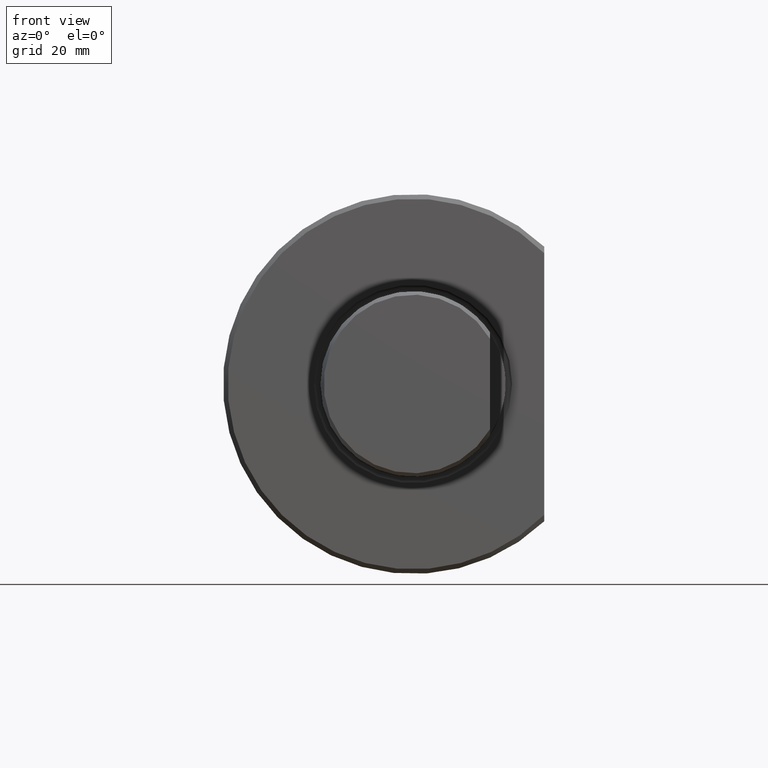
[diagram: clean part render]
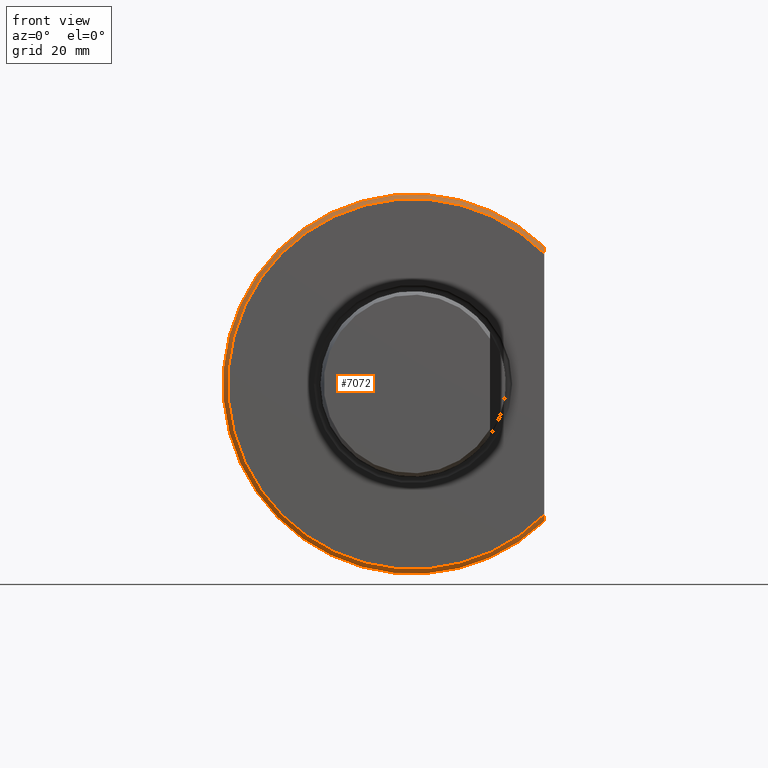
[diagram: same view with one face highlighted and labeled with its STEP entity id]
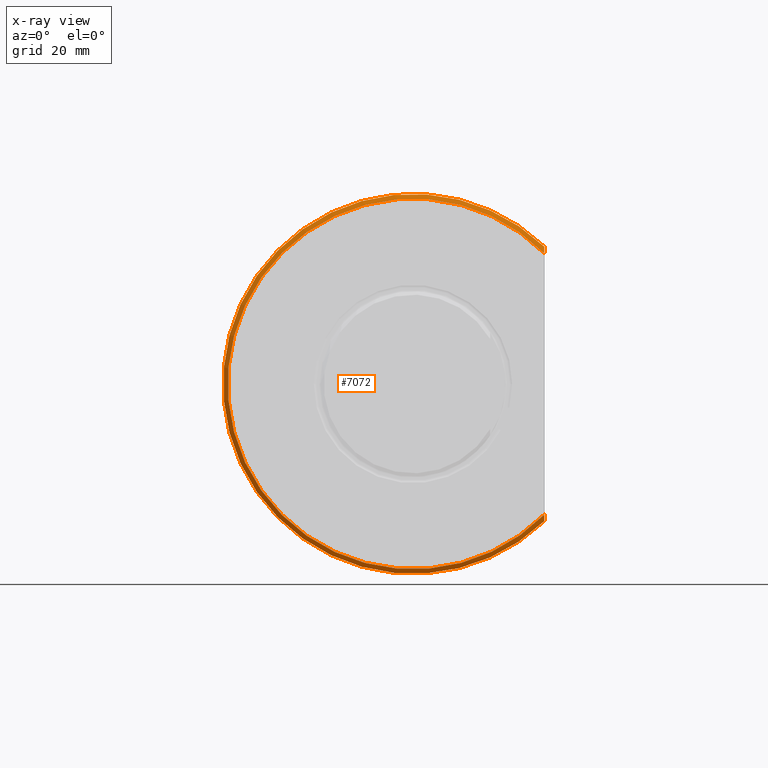
[diagram: x-ray of the same camera — body ghosted, the highlighted face saturated]
A machine part, front view. The second image highlights one B-rep face of the part: STEP entity #7072.
The next image is the same camera in x-ray: the body ghosted, the highlighted face saturated — about 0% of this face is hidden behind the body in this view.
In plain terms, the highlighted conical surface has half-angle 45 deg.
Its self-contained STEP definition (entity closure, byte-faithful):
#9 = AXIS2_PLACEMENT_3D ( 'NONE', #4065, #4340, #6455 ) ;
#296 = CARTESIAN_POINT ( 'NONE',  ( 42.49999999999999289, 0.4957946406845215037, -43.05506584028741912 ) ) ;
#407 = ORIENTED_EDGE ( 'NONE', *, *, #9666, .T. ) ;
#665 = DIRECTION ( 'NONE',  ( -1.000000000000000000, -1.304568467706135415E-16, 0.000000000000000000 ) ) ;
#852 = ORIENTED_EDGE ( 'NONE', *, *, #13151, .F. ) ;
#986 = B_SPLINE_CURVE_WITH_KNOTS ( 'NONE', 3,
 ( #2421, #13539, #1244, #3653 ),
 .UNSPECIFIED., .F., .F.,
 ( 4, 4 ),
 ( 1.184489779794245993E-06, 0.002560764092036673083 ),
 .UNSPECIFIED. ) ;
#1244 = CARTESIAN_POINT ( 'NONE',  ( 42.50000000000000711, 0.4956550520523327341, 43.05486808853304836 ) ) ;
#2210 = EDGE_LOOP ( 'NONE', ( #852, #11881, #8669, #407 ) ) ;
#2421 = CARTESIAN_POINT ( 'NONE',  ( 42.50000000000000711, 1.499999999999995781, 44.45222154178572538 ) ) ;
#2552 = DIRECTION ( 'NONE',  ( -1.000000000000000000, -1.295371175675670281E-16, 0.000000000000000000 ) ) ;
#3557 = AXIS2_PLACEMENT_3D ( 'NONE', #8057, #7062, #2552 ) ;
#3630 = CARTESIAN_POINT ( 'NONE',  ( 42.50000000000000711, 1.281975731971740041E-14, 42.35268586524352941 ) ) ;
#3653 = CARTESIAN_POINT ( 'NONE',  ( 42.50000000000000711, 1.281975731971740041E-14, 42.35268586524352941 ) ) ;
#4065 = CARTESIAN_POINT ( 'NONE',  ( -1.943056763513510352E-16, 1.500000000000003775, 0.000000000000000000 ) ) ;
#4087 = CARTESIAN_POINT ( 'NONE',  ( -1.943056763513510352E-16, 1.500000000000003775, 0.000000000000000000 ) ) ;
#4296 = VERTEX_POINT ( 'NONE', #3630 ) ;
#4340 = DIRECTION ( 'NONE',  ( -1.295371175675670281E-16, 1.000000000000000000, -0.000000000000000000 ) ) ;
#4714 = CARTESIAN_POINT ( 'NONE',  ( 42.49999999999999289, 1.500000000000006439, -44.45222154178573959 ) ) ;
#5365 = CARTESIAN_POINT ( 'NONE',  ( 42.50000000000000711, 1.499999999999995781, 44.45222154178572538 ) ) ;
#5876 = VERTEX_POINT ( 'NONE', #10472 ) ;
#5964 = CARTESIAN_POINT ( 'NONE',  ( 42.49999999999999289, 0.9959263589745595002, -43.75483167356679814 ) ) ;
#6455 = DIRECTION ( 'NONE',  ( -1.000000000000000000, -1.304568467706135415E-16, 0.000000000000000000 ) ) ;
#7062 = DIRECTION ( 'NONE',  ( -1.295371175675670281E-16, 1.000000000000000000, -0.000000000000000000 ) ) ;
#7072 = ADVANCED_FACE ( 'Defeature completata1_10', ( #9755 ), #9811, .T. ) ;
#7539 = EDGE_CURVE ( 'NONE', #8483, #5876, #12988, .T. ) ;
#8057 = CARTESIAN_POINT ( 'NONE',  ( -4.856686337891648901E-31, 3.749262318854966901E-15, 0.000000000000000000 ) ) ;
#8125 = CIRCLE ( 'NONE', #11951, 61.50000000000000000 ) ;
#8483 = VERTEX_POINT ( 'NONE', #10555 ) ;
#8600 = DIRECTION ( 'NONE',  ( -1.295371175675670281E-16, 1.000000000000000000, -0.000000000000000000 ) ) ;
#8669 = ORIENTED_EDGE ( 'NONE', *, *, #7539, .F. ) ;
#9600 = CIRCLE ( 'NONE', #3557, 60.00000000000000000 ) ;
#9666 = EDGE_CURVE ( 'NONE', #8483, #4296, #9600, .T. ) ;
#9755 = FACE_OUTER_BOUND ( 'NONE', #2210, .T. ) ;
#9811 = CONICAL_SURFACE ( 'NONE', #9, 61.50000000000000000, 0.7853981633974487231 ) ;
#10472 = CARTESIAN_POINT ( 'NONE',  ( 42.49999999999999289, 1.500000000000006439, -44.45222154178573959 ) ) ;
#10555 = CARTESIAN_POINT ( 'NONE',  ( 42.49999999999999289, 9.254589815476564682E-15, -42.35268586524354362 ) ) ;
#11209 = VERTEX_POINT ( 'NONE', #5365 ) ;
#11881 = ORIENTED_EDGE ( 'NONE', *, *, #13719, .F. ) ;
#11951 = AXIS2_PLACEMENT_3D ( 'NONE', #4087, #8600, #665 ) ;
#12988 = B_SPLINE_CURVE_WITH_KNOTS ( 'NONE', 3,
 ( #13617, #296, #5964, #4714 ),
 .UNSPECIFIED., .F., .F.,
 ( 4, 4 ),
 ( 0.09460675343373402268, 0.09714162107545640246 ),
 .UNSPECIFIED. ) ;
#13151 = EDGE_CURVE ( 'NONE', #11209, #4296, #986, .T. ) ;
#13539 = CARTESIAN_POINT ( 'NONE',  ( 42.50000000000000711, 0.9957888083259246459, 43.75464137115674390 ) ) ;
#13617 = CARTESIAN_POINT ( 'NONE',  ( 42.49999999999999289, 9.254589815476564682E-15, -42.35268586524354362 ) ) ;
#13719 = EDGE_CURVE ( 'NONE', #5876, #11209, #8125, .T. ) ;